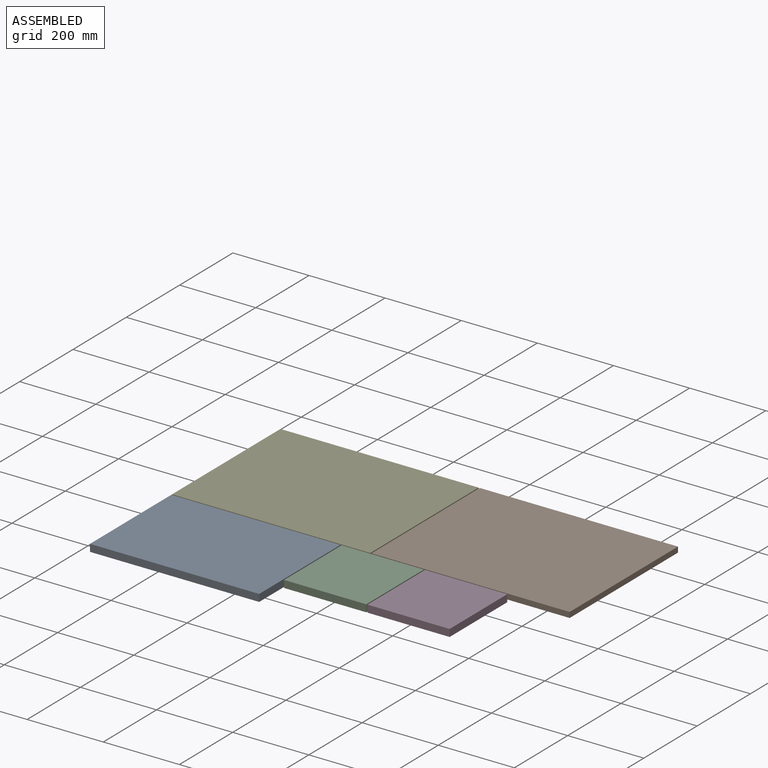
[diagram: assembled view]
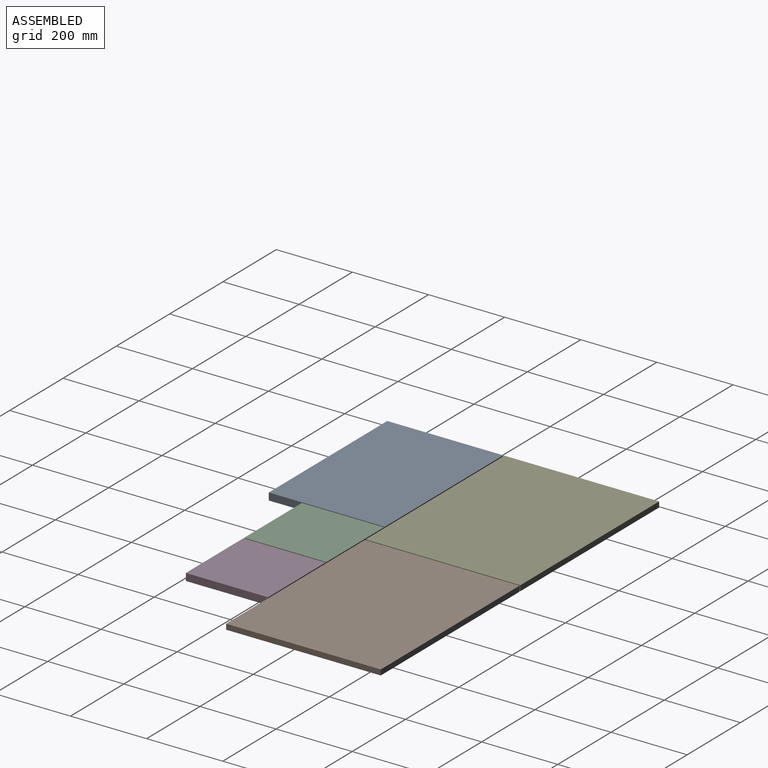
[diagram: assembled view, second angle]
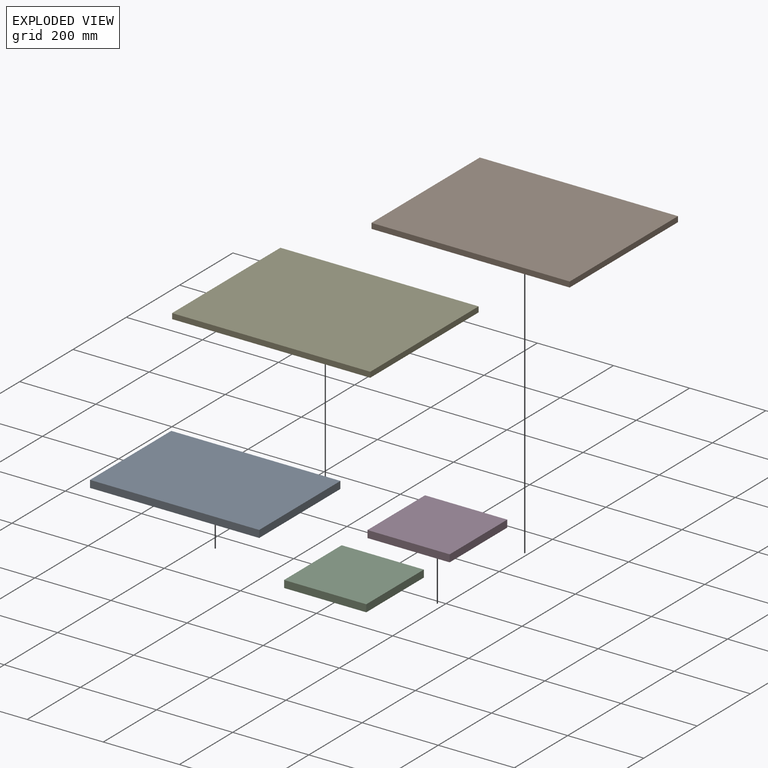
[diagram: exploded view]
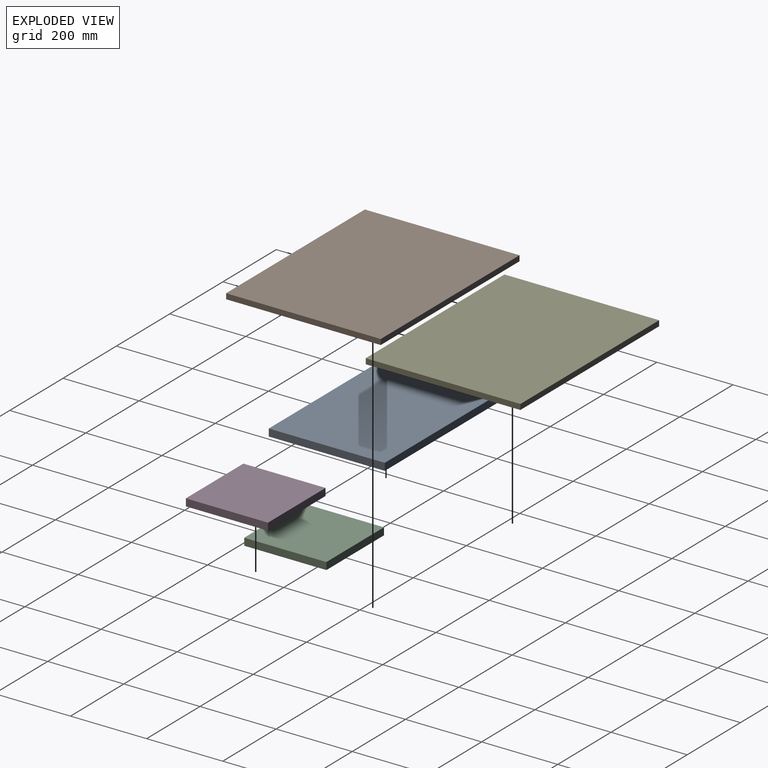
[diagram: exploded view, second angle]
ASSEMBLY  parts=5 mates=4
PART A: 6 faces, bbox 444.5x304.8x19.1 mm
  f0: plane 304.8x19.05mm, normal (1,0,0), area 5806.4mm2, adj f1,f3,f4,f5
  f1: plane 444.5x19.05mm, normal (0,1,0), area 8467.7mm2, adj f0,f2,f4,f5
  f2: plane 304.8x19.05mm, normal (-1,0,0), area 5806.4mm2, adj f1,f3,f4,f5
  f3: plane 444.5x19.05mm, normal (0,-1,0), area 8467.7mm2, adj f0,f2,f4,f5
  f4: plane 444.5x304.8mm, normal (0,0,1), area 135483.6mm2, adj f0,f1,f2,f3
  f5: plane 444.5x304.8mm, normal (0,0,-1), area 135483.6mm2, adj f0,f1,f2,f3
PART B: 6 faces, bbox 520.7x406.4x14.3 mm
  f0: plane 406.4x14.29mm, normal (1,0,0), area 5806.4mm2, adj f1,f3,f4,f5
  f1: plane 520.7x14.29mm, normal (0,1,0), area 7439.5mm2, adj f0,f2,f4,f5
  f2: plane 406.4x14.29mm, normal (-1,0,0), area 5806.4mm2, adj f1,f3,f4,f5
  f3: plane 520.7x14.29mm, normal (0,-1,0), area 7439.5mm2, adj f0,f2,f4,f5
  f4: plane 520.7x406.4mm, normal (0,0,1), area 211612.5mm2, adj f0,f1,f2,f3
  f5: plane 520.7x406.4mm, normal (0,0,-1), area 211612.5mm2, adj f0,f1,f2,f3
PART C: 6 faces, bbox 215.9x215.9x19.1 mm
  f0: plane 215.9x19.05mm, normal (1,0,0), area 4112.9mm2, adj f1,f3,f4,f5
  f1: plane 215.9x19.05mm, normal (0,1,0), area 4112.9mm2, adj f0,f2,f4,f5
  f2: plane 215.9x19.05mm, normal (-1,0,0), area 4112.9mm2, adj f1,f3,f4,f5
  f3: plane 215.9x19.05mm, normal (0,-1,0), area 4112.9mm2, adj f0,f2,f4,f5
  f4: plane 215.9x215.9mm, normal (0,0,1), area 46612.8mm2, adj f0,f1,f2,f3
  f5: plane 215.9x215.9mm, normal (0,0,-1), area 46612.8mm2, adj f0,f1,f2,f3
PART D: same geometry as C
PART E: same geometry as B
PLACE A t=(-132.99,-304.34,-11.91)mm
PLACE B t=(428.98,54.43,-7.14)mm
PLACE C t=(200.38,-259.89,-11.91)mm
PLACE D t=(419.46,-259.89,-11.91)mm
PLACE E t=(-94.89,54.43,-7.14)mm fixed
MATE fastened A.f4 <-> C.f4  axis (0,0,1) through (89.26,-151.94,7.14)mm
MATE fastened C.f4 <-> D.f4  axis (0,0,1) through (308.33,-151.94,7.14)mm
MATE fastened B.f4 <-> E.f4  axis (0,0,1) through (168.63,-148.77,7.14)mm
MATE fastened A.f4 <-> E.f4  axis (0,0,1) through (-355.24,-151.94,7.14)mm
